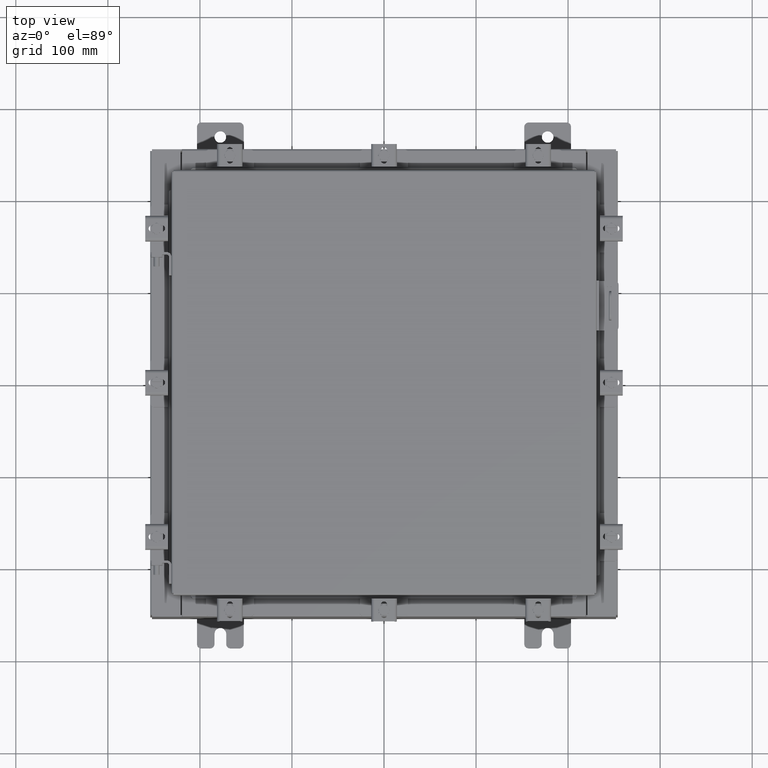
[diagram: clean part render]
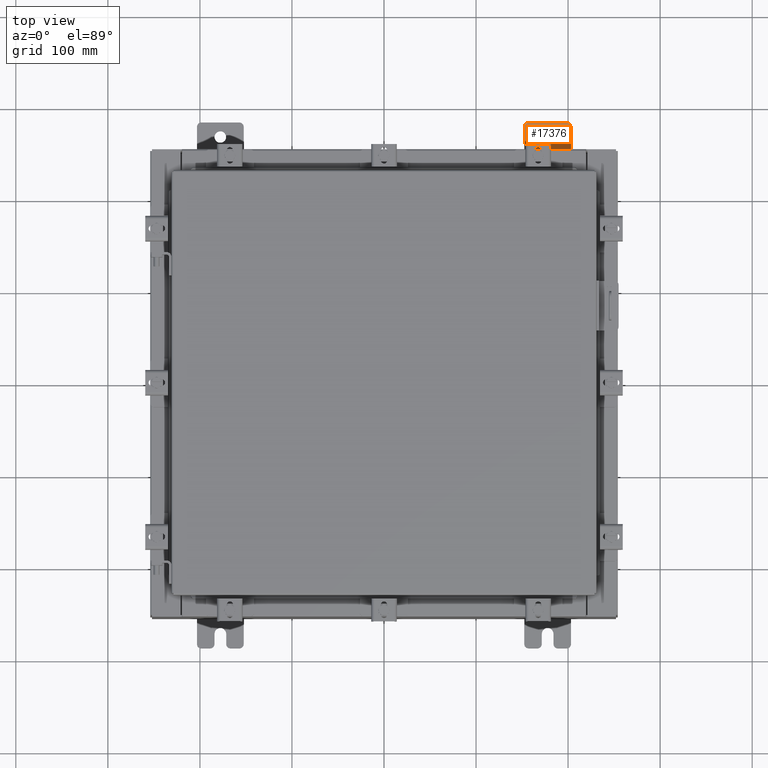
[diagram: same view with one face highlighted and labeled with its STEP entity id]
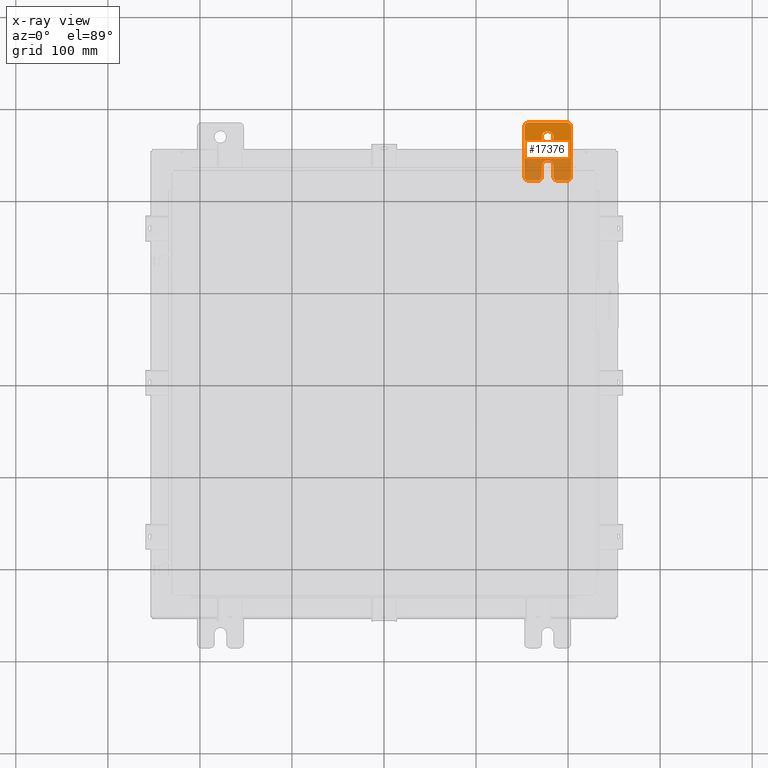
[diagram: x-ray of the same camera — body ghosted, the highlighted face saturated]
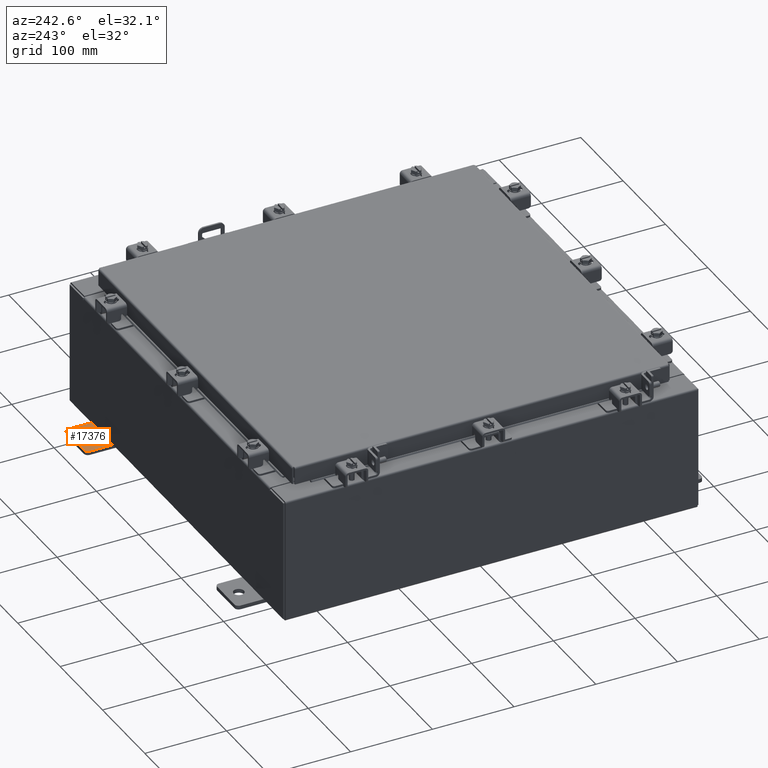
[diagram: same view with one face highlighted and labeled with its STEP entity id]
A machine part, top view. The second image highlights one B-rep face of the part: STEP entity #17376.
The next image is the same camera in x-ray: the body ghosted, the highlighted face saturated — about 57% of this face is hidden behind the body in this view.
A second angle (auxiliary view) of the same face is appended — the face is thin or edge-on in the first view.
In plain terms, the highlighted planar face has unit normal (0, 0, 1).
Its self-contained STEP definition (entity closure, byte-faithful):
#291 = EDGE_CURVE ( 'NONE', #11727, #21413, #3886, .T. ) ;
#385 = DIRECTION ( 'NONE',  ( 0.0000000000000000000, 1.000000000000000000, -1.639108796198558100E-015 ) ) ;
#773 = CARTESIAN_POINT ( 'NONE',  ( 0.0000000000000000000, -1.060000000000000300, 0.9999999999999992200 ) ) ;
#837 = ORIENTED_EDGE ( 'NONE', *, *, #17415, .T. ) ;
#973 = VERTEX_POINT ( 'NONE', #5375 ) ;
#1218 = EDGE_CURVE ( 'NONE', #6090, #15248, #15662, .T. ) ;
#1226 = AXIS2_PLACEMENT_3D ( 'NONE', #15337, #4852, #17069 ) ;
#1278 = DIRECTION ( 'NONE',  ( -5.163192708025533800E-017, 0.0000000000000000000, -1.000000000000000000 ) ) ;
#1378 = VERTEX_POINT ( 'NONE', #16220 ) ;
#1502 = CIRCLE ( 'NONE', #20867, 0.1900000000000011100 ) ;
#1598 = CARTESIAN_POINT ( 'NONE',  ( 0.0000000000000000000, 1.059999999999995800, 0.9999999999999958900 ) ) ;
#1820 = EDGE_CURVE ( 'NONE', #15248, #17760, #15644, .T. ) ;
#2012 = CARTESIAN_POINT ( 'NONE',  ( 0.0000000000000000000, 1.249999999999995800, -1.000000000000010000 ) ) ;
#2228 = CARTESIAN_POINT ( 'NONE',  ( 5.463695987328526400E-016, -0.6249999999999988900, 0.0000000000000000000 ) ) ;
#2262 = CARTESIAN_POINT ( 'NONE',  ( 5.463695987328526400E-016, -0.6249999999999988900, -0.2499999999999998100 ) ) ;
#2614 = VERTEX_POINT ( 'NONE', #7800 ) ;
#2800 = CIRCLE ( 'NONE', #17270, 0.1900000000000011100 ) ;
#2934 = DIRECTION ( 'NONE',  ( 0.0000000000000000000, -1.639108796198553600E-015, -1.000000000000000000 ) ) ;
#3022 = LINE ( 'NONE', #12130, #16949 ) ;
#3135 = DIRECTION ( 'NONE',  ( 0.0000000000000000000, 0.0000000000000000000, -1.000000000000000000 ) ) ;
#3153 = CIRCLE ( 'NONE', #21393, 0.2499999999999999200 ) ;
#3436 = ORIENTED_EDGE ( 'NONE', *, *, #20848, .T. ) ;
#3628 = EDGE_CURVE ( 'NONE', #18084, #20326, #16364, .T. ) ;
#3645 = VERTEX_POINT ( 'NONE', #16759 ) ;
#3722 = DIRECTION ( 'NONE',  ( 0.0000000000000000000, 1.639108796198553600E-015, 1.000000000000000000 ) ) ;
#3844 = DIRECTION ( 'NONE',  ( 1.000000000000000000, 0.0000000000000000000, 0.0000000000000000000 ) ) ;
#3886 = LINE ( 'NONE', #21111, #22431 ) ;
#3941 = DIRECTION ( 'NONE',  ( -6.523827964459551700E-016, -1.000000000000000000, 0.0000000000000000000 ) ) ;
#4169 = CARTESIAN_POINT ( 'NONE',  ( 5.463695987328526400E-016, 0.6249999999999988900, 0.0000000000000000000 ) ) ;
#4264 = VERTEX_POINT ( 'NONE', #11472 ) ;
#4573 = CIRCLE ( 'NONE', #15453, 0.2499999999999999200 ) ;
#4852 = DIRECTION ( 'NONE',  ( 1.000000000000000000, 0.0000000000000000000, 0.0000000000000000000 ) ) ;
#4931 = VERTEX_POINT ( 'NONE', #6447 ) ;
#5375 = CARTESIAN_POINT ( 'NONE',  ( 0.0000000000000000000, 1.249999999999997800, 0.8099999999999938400 ) ) ;
#5762 = VERTEX_POINT ( 'NONE', #18048 ) ;
#5941 = DIRECTION ( 'NONE',  ( -5.163192708025533800E-017, 0.0000000000000000000, -1.000000000000000000 ) ) ;
#6090 = VERTEX_POINT ( 'NONE', #18132 ) ;
#6319 = CARTESIAN_POINT ( 'NONE',  ( 0.0000000000000000000, 1.249999999999997800, 0.9999999999999947800 ) ) ;
#6436 = EDGE_CURVE ( 'NONE', #3645, #4264, #3022, .T. ) ;
#6447 = CARTESIAN_POINT ( 'NONE',  ( 0.0000000000000000000, -1.250000000000004400, -0.8100000000000047200 ) ) ;
#6819 = CARTESIAN_POINT ( 'NONE',  ( 0.0000000000000000000, -1.060000000000004500, -0.4400000000000007800 ) ) ;
#6926 = VECTOR ( 'NONE', #7656, 39.37007874015748100 ) ;
#7002 = EDGE_CURVE ( 'NONE', #20811, #973, #21484, .T. ) ;
#7565 = ORIENTED_EDGE ( 'NONE', *, *, #6436, .T. ) ;
#7627 = VECTOR ( 'NONE', #18487, 39.37007874015748100 ) ;
#7639 = VECTOR ( 'NONE', #3722, 39.37007874015748100 ) ;
#7656 = DIRECTION ( 'NONE',  ( -6.556435184794182400E-016, -1.000000000000000000, -1.639108796198545600E-016 ) ) ;
#7800 = CARTESIAN_POINT ( 'NONE',  ( 5.592775805029164100E-016, 0.6249999999999988900, 0.2499999999999999200 ) ) ;
#7940 = ORIENTED_EDGE ( 'NONE', *, *, #1820, .T. ) ;
#8225 = ORIENTED_EDGE ( 'NONE', *, *, #11374, .F. ) ;
#8299 = CARTESIAN_POINT ( 'NONE',  ( 0.0000000000000000000, -1.250000000000002200, 0.9999999999999992200 ) ) ;
#8403 = CARTESIAN_POINT ( 'NONE',  ( 0.0000000000000000000, -1.060000000000004500, -0.8100000000000047200 ) ) ;
#8452 = ORIENTED_EDGE ( 'NONE', *, *, #1218, .T. ) ;
#8602 = DIRECTION ( 'NONE',  ( 0.0000000000000000000, 0.0000000000000000000, -1.000000000000000000 ) ) ;
#9158 = CARTESIAN_POINT ( 'NONE',  ( 0.0000000000000000000, -0.6249999999999988900, 0.2500000000000008900 ) ) ;
#9185 = CARTESIAN_POINT ( 'NONE',  ( 0.0000000000000000000, -1.060000000000002300, 0.4400000000000018900 ) ) ;
#9228 = CIRCLE ( 'NONE', #16747, 0.2499999999999999200 ) ;
#9690 = AXIS2_PLACEMENT_3D ( 'NONE', #6819, #18999, #8602 ) ;
#10175 = DIRECTION ( 'NONE',  ( 0.0000000000000000000, 0.0000000000000000000, -1.000000000000000000 ) ) ;
#10258 = DIRECTION ( 'NONE',  ( 1.000000000000000000, 0.0000000000000000000, 0.0000000000000000000 ) ) ;
#10457 = CIRCLE ( 'NONE', #1226, 0.1900000000000011100 ) ;
#10838 = CARTESIAN_POINT ( 'NONE',  ( 0.0000000000000000000, -1.250000000000004400, -1.000000000000006900 ) ) ;
#10937 = DIRECTION ( 'NONE',  ( 0.0000000000000000000, 0.0000000000000000000, -1.000000000000000000 ) ) ;
#11040 = AXIS2_PLACEMENT_3D ( 'NONE', #9185, #21315, #10937 ) ;
#11120 = CARTESIAN_POINT ( 'NONE',  ( 0.0000000000000000000, -1.250000000000004400, -0.4399999999999996700 ) ) ;
#11122 = EDGE_LOOP ( 'NONE', ( #12321, #11388, #7565, #15441, #17734, #14464, #8452, #7940, #18380, #13913, #3436, #15331, #14360, #837 ) ) ;
#11186 = VERTEX_POINT ( 'NONE', #17252 ) ;
#11341 = VECTOR ( 'NONE', #2934, 39.37007874015748100 ) ;
#11374 = EDGE_CURVE ( 'NONE', #11186, #2614, #4573, .T. ) ;
#11388 = ORIENTED_EDGE ( 'NONE', *, *, #16657, .T. ) ;
#11472 = CARTESIAN_POINT ( 'NONE',  ( 0.0000000000000000000, -1.250000000000002200, 0.4400000000000018900 ) ) ;
#11724 = DIRECTION ( 'NONE',  ( 1.000000000000000000, 0.0000000000000000000, -5.163192708025532000E-017 ) ) ;
#11727 = VERTEX_POINT ( 'NONE', #20714 ) ;
#12106 = FACE_OUTER_BOUND ( 'NONE', #11122, .T. ) ;
#12130 = CARTESIAN_POINT ( 'NONE',  ( 0.0000000000000000000, -1.250000000000002200, 0.9999999999999992200 ) ) ;
#12321 = ORIENTED_EDGE ( 'NONE', *, *, #3628, .T. ) ;
#12434 = CARTESIAN_POINT ( 'NONE',  ( 0.0000000000000000000, 1.249999999999995800, -0.8100000000000091600 ) ) ;
#12776 = CARTESIAN_POINT ( 'NONE',  ( 0.0000000000000000000, -1.060000000000004500, -0.2499999999999998100 ) ) ;
#13580 = DIRECTION ( 'NONE',  ( 1.000000000000000000, 0.0000000000000000000, 0.0000000000000000000 ) ) ;
#13913 = ORIENTED_EDGE ( 'NONE', *, *, #17379, .T. ) ;
#14317 = CARTESIAN_POINT ( 'NONE',  ( 0.0000000000000000000, -1.060000000000002300, 0.8099999999999981700 ) ) ;
#14360 = ORIENTED_EDGE ( 'NONE', *, *, #7002, .T. ) ;
#14400 = LINE ( 'NONE', #10838, #15524 ) ;
#14411 = DIRECTION ( 'NONE',  ( -1.000000000000000000, 6.523827964459549700E-016, 5.163192708025532000E-017 ) ) ;
#14464 = ORIENTED_EDGE ( 'NONE', *, *, #20883, .T. ) ;
#15248 = VERTEX_POINT ( 'NONE', #12776 ) ;
#15331 = ORIENTED_EDGE ( 'NONE', *, *, #17963, .T. ) ;
#15337 = CARTESIAN_POINT ( 'NONE',  ( 0.0000000000000000000, 1.059999999999993600, -0.8100000000000091600 ) ) ;
#15441 = ORIENTED_EDGE ( 'NONE', *, *, #19987, .T. ) ;
#15453 = AXIS2_PLACEMENT_3D ( 'NONE', #4169, #16412, #5941 ) ;
#15496 = EDGE_CURVE ( 'NONE', #2614, #11186, #3153, .T. ) ;
#15524 = VECTOR ( 'NONE', #385, 39.37007874015748100 ) ;
#15531 = EDGE_CURVE ( 'NONE', #17760, #4931, #20600, .T. ) ;
#15644 = CIRCLE ( 'NONE', #9690, 0.1900000000000011100 ) ;
#15662 = LINE ( 'NONE', #2262, #6926 ) ;
#15929 = DIRECTION ( 'NONE',  ( 6.556435184794182400E-016, 1.000000000000000000, 0.0000000000000000000 ) ) ;
#16073 = DIRECTION ( 'NONE',  ( 0.0000000000000000000, 0.0000000000000000000, -1.000000000000000000 ) ) ;
#16220 = CARTESIAN_POINT ( 'NONE',  ( 0.0000000000000000000, 1.059999999999993600, -1.000000000000010000 ) ) ;
#16364 = LINE ( 'NONE', #6319, #7627 ) ;
#16412 = DIRECTION ( 'NONE',  ( 1.000000000000000000, 0.0000000000000000000, -5.163192708025532000E-017 ) ) ;
#16540 = ORIENTED_EDGE ( 'NONE', *, *, #15496, .F. ) ;
#16657 = EDGE_CURVE ( 'NONE', #20326, #3645, #1502, .T. ) ;
#16747 = AXIS2_PLACEMENT_3D ( 'NONE', #2228, #14411, #3941 ) ;
#16759 = CARTESIAN_POINT ( 'NONE',  ( 0.0000000000000000000, -1.250000000000002200, 0.8099999999999981700 ) ) ;
#16949 = VECTOR ( 'NONE', #22522, 39.37007874015748100 ) ;
#17069 = DIRECTION ( 'NONE',  ( 0.0000000000000000000, 0.0000000000000000000, -1.000000000000000000 ) ) ;
#17252 = CARTESIAN_POINT ( 'NONE',  ( 5.334616169627887800E-016, 0.6249999999999988900, -0.2499999999999999200 ) ) ;
#17270 = AXIS2_PLACEMENT_3D ( 'NONE', #8403, #20581, #10175 ) ;
#17376 = ADVANCED_FACE ( 'NONE', ( #21305, #12106 ), #20421, .T. ) ;
#17379 = EDGE_CURVE ( 'NONE', #4931, #5762, #2800, .T. ) ;
#17415 = EDGE_CURVE ( 'NONE', #973, #18084, #20251, .T. ) ;
#17734 = ORIENTED_EDGE ( 'NONE', *, *, #291, .T. ) ;
#17760 = VERTEX_POINT ( 'NONE', #11120 ) ;
#17963 = EDGE_CURVE ( 'NONE', #1378, #20811, #10457, .T. ) ;
#18048 = CARTESIAN_POINT ( 'NONE',  ( 0.0000000000000000000, -1.060000000000004500, -1.000000000000006900 ) ) ;
#18084 = VERTEX_POINT ( 'NONE', #1598 ) ;
#18132 = CARTESIAN_POINT ( 'NONE',  ( 5.463695987328526400E-016, -0.6249999999999988900, -0.2499999999999998100 ) ) ;
#18380 = ORIENTED_EDGE ( 'NONE', *, *, #15531, .T. ) ;
#18414 = AXIS2_PLACEMENT_3D ( 'NONE', #20506, #13580, #3135 ) ;
#18487 = DIRECTION ( 'NONE',  ( 0.0000000000000000000, -1.000000000000000000, 1.639108796198558100E-015 ) ) ;
#18902 = EDGE_LOOP ( 'NONE', ( #8225, #16540 ) ) ;
#18999 = DIRECTION ( 'NONE',  ( 1.000000000000000000, 0.0000000000000000000, 0.0000000000000000000 ) ) ;
#19867 = CIRCLE ( 'NONE', #11040, 0.1900000000000011400 ) ;
#19987 = EDGE_CURVE ( 'NONE', #4264, #11727, #19867, .T. ) ;
#20251 = CIRCLE ( 'NONE', #21887, 0.1900000000000011100 ) ;
#20326 = VERTEX_POINT ( 'NONE', #773 ) ;
#20421 = PLANE ( 'NONE',  #18414 ) ;
#20506 = CARTESIAN_POINT ( 'NONE',  ( 0.0000000000000000000, 0.0000000000000000000, 0.0000000000000000000 ) ) ;
#20581 = DIRECTION ( 'NONE',  ( 1.000000000000000000, 0.0000000000000000000, 0.0000000000000000000 ) ) ;
#20600 = LINE ( 'NONE', #8299, #11341 ) ;
#20648 = CARTESIAN_POINT ( 'NONE',  ( 0.0000000000000000000, 1.059999999999995800, 0.8099999999999938400 ) ) ;
#20714 = CARTESIAN_POINT ( 'NONE',  ( 0.0000000000000000000, -1.060000000000002300, 0.2500000000000008900 ) ) ;
#20811 = VERTEX_POINT ( 'NONE', #12434 ) ;
#20848 = EDGE_CURVE ( 'NONE', #5762, #1378, #14400, .T. ) ;
#20867 = AXIS2_PLACEMENT_3D ( 'NONE', #14317, #3844, #16073 ) ;
#20883 = EDGE_CURVE ( 'NONE', #21413, #6090, #9228, .T. ) ;
#21111 = CARTESIAN_POINT ( 'NONE',  ( 0.0000000000000000000, -1.250000000000004400, 0.2500000000000008900 ) ) ;
#21305 = FACE_BOUND ( 'NONE', #18902, .T. ) ;
#21315 = DIRECTION ( 'NONE',  ( 1.000000000000000000, 0.0000000000000000000, 0.0000000000000000000 ) ) ;
#21393 = AXIS2_PLACEMENT_3D ( 'NONE', #22116, #11724, #1278 ) ;
#21413 = VERTEX_POINT ( 'NONE', #9158 ) ;
#21484 = LINE ( 'NONE', #2012, #7639 ) ;
#21887 = AXIS2_PLACEMENT_3D ( 'NONE', #20648, #10258, #22396 ) ;
#22116 = CARTESIAN_POINT ( 'NONE',  ( 5.463695987328526400E-016, 0.6249999999999988900, 0.0000000000000000000 ) ) ;
#22396 = DIRECTION ( 'NONE',  ( 0.0000000000000000000, 0.0000000000000000000, -1.000000000000000000 ) ) ;
#22431 = VECTOR ( 'NONE', #15929, 39.37007874015748100 ) ;
#22522 = DIRECTION ( 'NONE',  ( 0.0000000000000000000, -1.639108796198553600E-015, -1.000000000000000000 ) ) ;